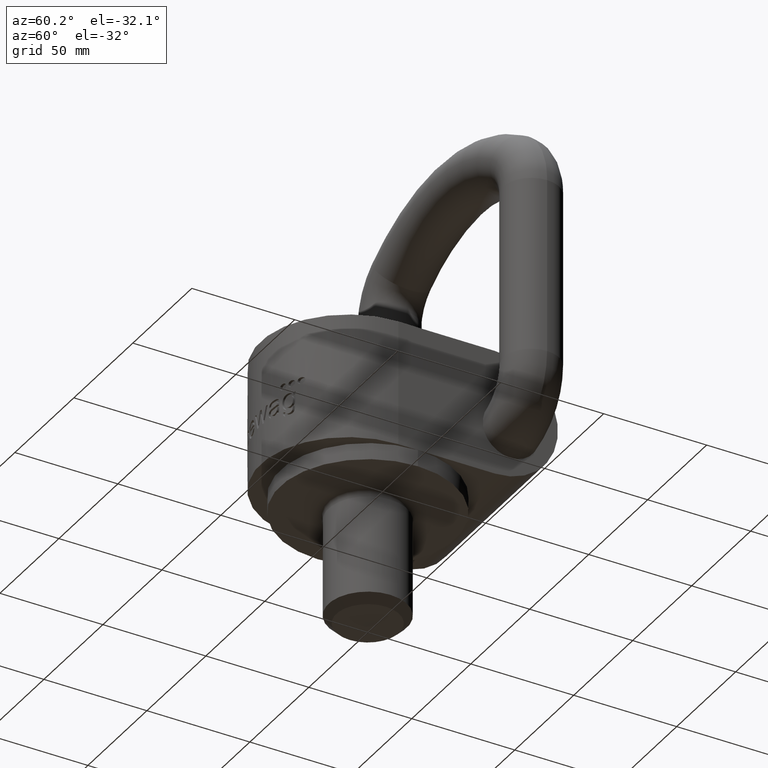
[diagram: clean part render]
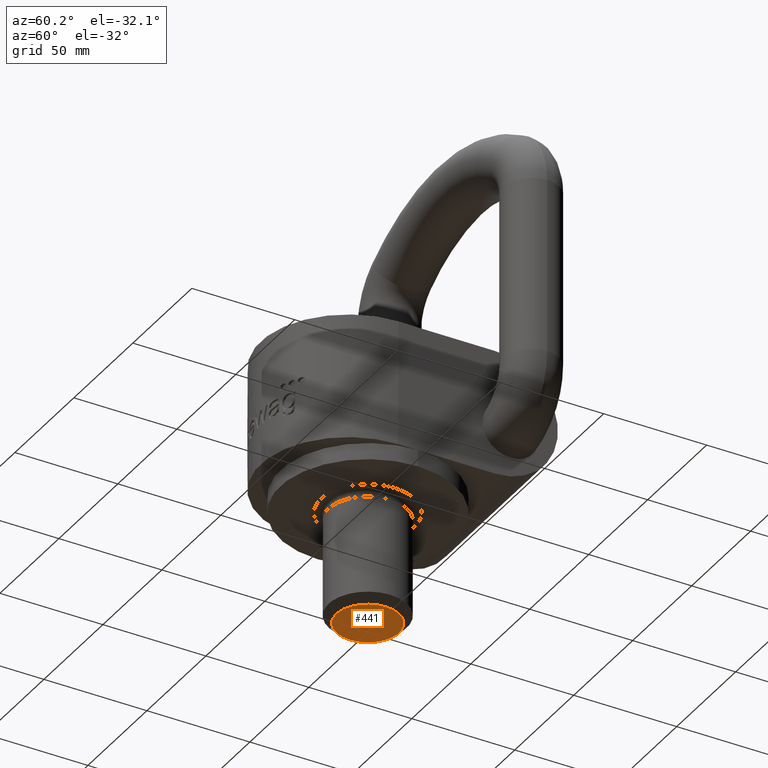
[diagram: same view with one face highlighted and labeled with its STEP entity id]
A machine part, auxiliary view. The second image highlights one B-rep face of the part: STEP entity #441.
In plain terms, the highlighted planar face has unit normal (0, 0, -1).
Its self-contained STEP definition (entity closure, byte-faithful):
#267=PLANE('',#2533);
#326=FACE_OUTER_BOUND('',#676,.T.);
#441=ADVANCED_FACE('',(#326),#267,.T.);
#676=EDGE_LOOP('',(#1331));
#1131=CIRCLE('',#2532,15.24);
#1331=ORIENTED_EDGE('',*,*,#2107,.T.);
#1874=VERTEX_POINT('',#3884);
#2107=EDGE_CURVE('',#1874,#1874,#1131,.T.);
#2532=AXIS2_PLACEMENT_3D('',#3883,#2795,#2796);
#2533=AXIS2_PLACEMENT_3D('',#3885,#2797,#2798);
#2795=DIRECTION('',(0.,0.,-1.));
#2796=DIRECTION('',(-1.,0.,0.));
#2797=DIRECTION('',(0.,0.,-1.));
#2798=DIRECTION('',(-1.,0.,0.));
#3883=CARTESIAN_POINT('',(0.,0.,-62.9999999999999));
#3884=CARTESIAN_POINT('',(-15.24,0.,-62.9999999999999));
#3885=CARTESIAN_POINT('',(0.,0.,-62.9999999999999));